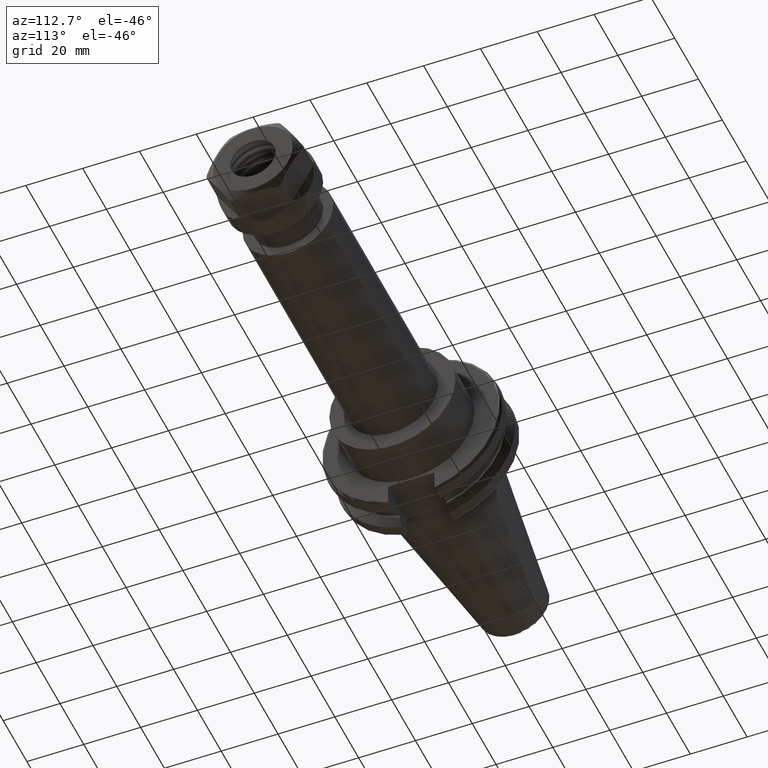
[diagram: clean part render]
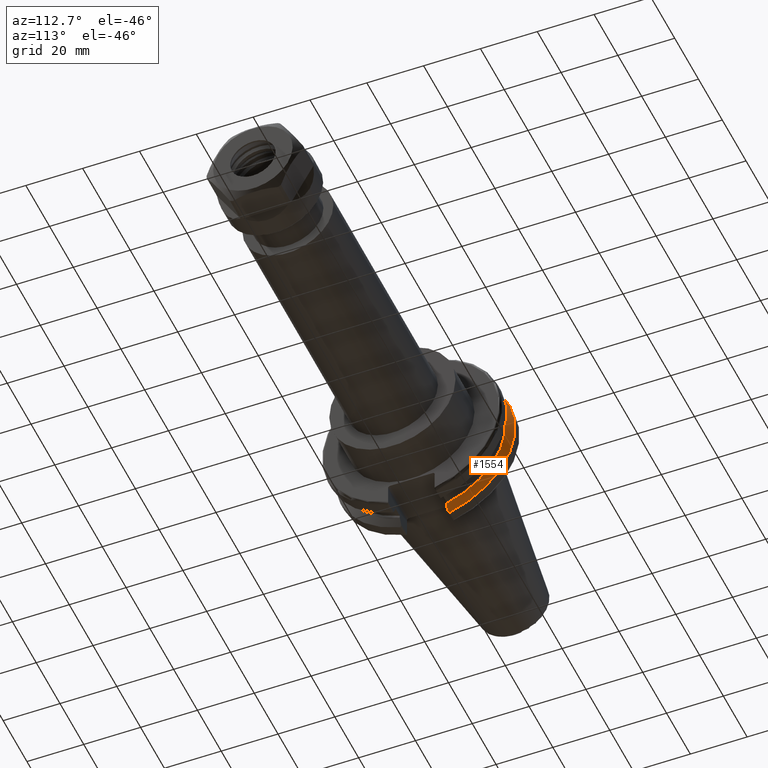
[diagram: same view with one face highlighted and labeled with its STEP entity id]
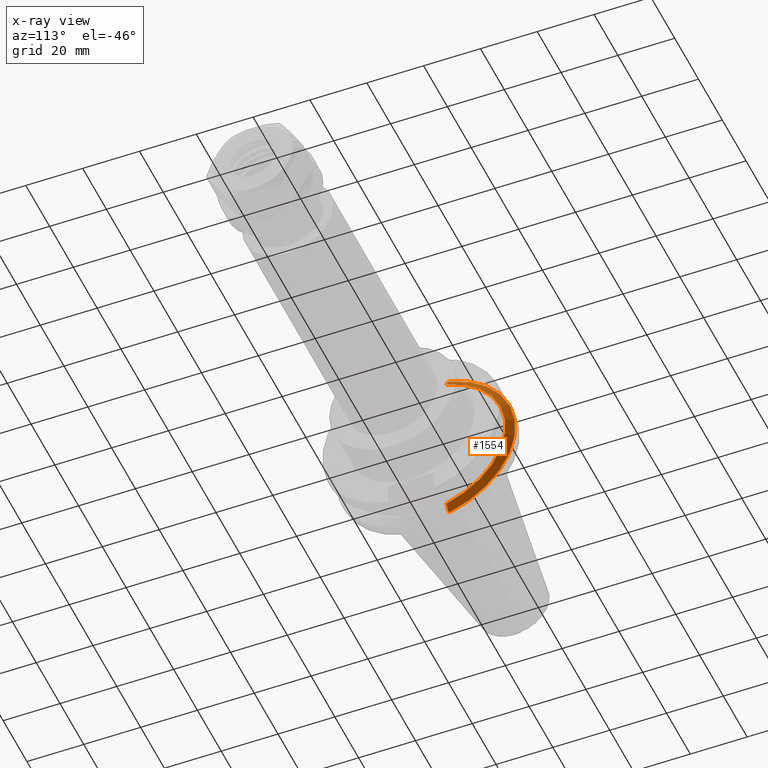
[diagram: x-ray of the same camera — body ghosted, the highlighted face saturated]
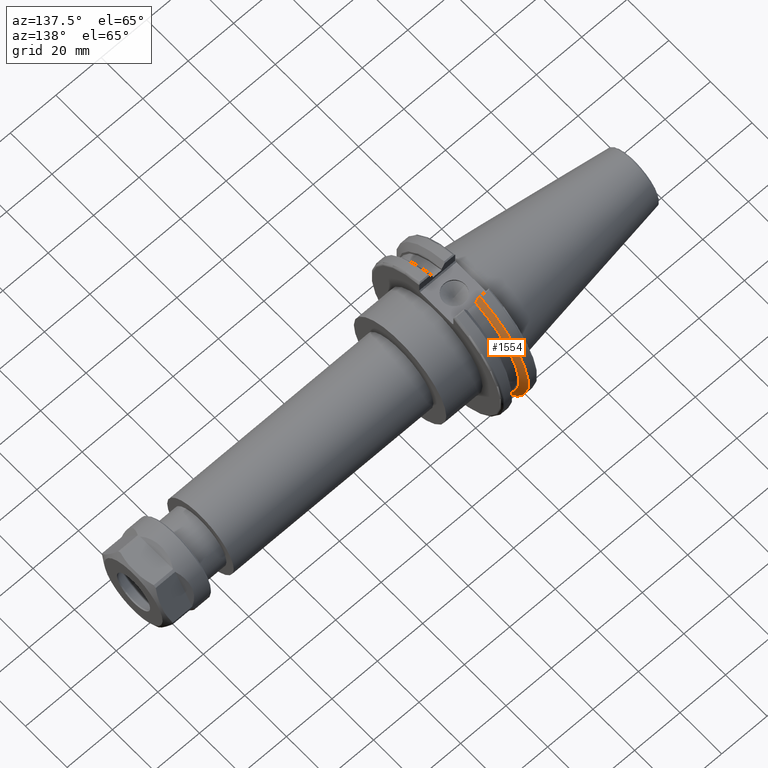
[diagram: same view with one face highlighted and labeled with its STEP entity id]
A machine part, auxiliary view. The second image highlights one B-rep face of the part: STEP entity #1554.
The next image is the same camera in x-ray: the body ghosted, the highlighted face saturated — about 3% of this face is hidden behind the body in this view.
A second angle (auxiliary view) of the same face is appended — the face is thin or edge-on in the first view.
In plain terms, the highlighted conical surface has half-angle 60 deg.
Its self-contained STEP definition (entity closure, byte-faithful):
#69=(
BOUNDED_CURVE()
B_SPLINE_CURVE(2,(#2464,#2465,#2466),.UNSPECIFIED.,.F.,.F.)
B_SPLINE_CURVE_WITH_KNOTS((3,3),(0.,0.276549142796606),.UNSPECIFIED.)
CURVE()
GEOMETRIC_REPRESENTATION_ITEM()
RATIONAL_B_SPLINE_CURVE((1.,1.00095203903674,1.00031614444931))
REPRESENTATION_ITEM('')
);
#77=(
BOUNDED_CURVE()
B_SPLINE_CURVE(2,(#2646,#2647,#2648),.UNSPECIFIED.,.F.,.F.)
B_SPLINE_CURVE_WITH_KNOTS((3,3),(0.,0.0639048713675806),.UNSPECIFIED.)
CURVE()
GEOMETRIC_REPRESENTATION_ITEM()
RATIONAL_B_SPLINE_CURVE((1.,1.00028444218287,1.00047644010581))
REPRESENTATION_ITEM('')
);
#79=(
BOUNDED_CURVE()
B_SPLINE_CURVE(2,(#2688,#2689,#2690),.UNSPECIFIED.,.F.,.F.)
B_SPLINE_CURVE_WITH_KNOTS((3,3),(0.0550586467389817,0.331607789535851),
 .UNSPECIFIED.)
CURVE()
GEOMETRIC_REPRESENTATION_ITEM()
RATIONAL_B_SPLINE_CURVE((1.00031614445175,1.00095203904407,1.))
REPRESENTATION_ITEM('')
);
#83=(
BOUNDED_CURVE()
B_SPLINE_CURVE(2,(#2721,#2722,#2723),.UNSPECIFIED.,.F.,.F.)
B_SPLINE_CURVE_WITH_KNOTS((3,3),(0.329353533631191,0.393258405001025),
 .UNSPECIFIED.)
CURVE()
GEOMETRIC_REPRESENTATION_ITEM()
RATIONAL_B_SPLINE_CURVE((1.00047644010569,1.00028444218281,1.))
REPRESENTATION_ITEM('')
);
#185=CONICAL_SURFACE('',#1762,30.3546886482472,1.0471975511966);
#241=FACE_OUTER_BOUND('',#340,.T.);
#340=EDGE_LOOP('',(#1287,#1288,#1289,#1290,#1291,#1292));
#629=CIRCLE('',#1750,31.75);
#634=CIRCLE('',#1763,28.9593772964944);
#711=VERTEX_POINT('',#2461);
#712=VERTEX_POINT('',#2463);
#750=VERTEX_POINT('',#2644);
#760=VERTEX_POINT('',#2685);
#761=VERTEX_POINT('',#2687);
#764=VERTEX_POINT('',#2703);
#872=EDGE_CURVE('',#712,#711,#69,.T.);
#923=EDGE_CURVE('',#750,#711,#77,.T.);
#941=EDGE_CURVE('',#761,#760,#79,.T.);
#948=EDGE_CURVE('',#750,#764,#629,.T.);
#954=EDGE_CURVE('',#761,#764,#83,.T.);
#959=EDGE_CURVE('',#712,#760,#634,.T.);
#1287=ORIENTED_EDGE('',*,*,#923,.F.);
#1288=ORIENTED_EDGE('',*,*,#948,.T.);
#1289=ORIENTED_EDGE('',*,*,#954,.F.);
#1290=ORIENTED_EDGE('',*,*,#941,.T.);
#1291=ORIENTED_EDGE('',*,*,#959,.F.);
#1292=ORIENTED_EDGE('',*,*,#872,.T.);
#1554=ADVANCED_FACE('',(#241),#185,.T.);
#1750=AXIS2_PLACEMENT_3D('',#2705,#2076,#2077);
#1762=AXIS2_PLACEMENT_3D('',#2733,#2103,#2104);
#1763=AXIS2_PLACEMENT_3D('',#2734,#2105,#2106);
#2076=DIRECTION('center_axis',(1.,0.,0.));
#2077=DIRECTION('ref_axis',(0.,0.,-1.));
#2103=DIRECTION('center_axis',(-1.,0.,0.));
#2104=DIRECTION('ref_axis',(0.,1.,0.));
#2105=DIRECTION('center_axis',(1.,0.,0.));
#2106=DIRECTION('ref_axis',(0.,0.,-1.));
#2461=CARTESIAN_POINT('',(7.87958530351256,8.19,-30.1755016258903));
#2463=CARTESIAN_POINT('',(9.212,8.19,-27.7771386827498));
#2464=CARTESIAN_POINT('Ctrl Pts',(9.212,8.19,-27.7771386827498));
#2465=CARTESIAN_POINT('Ctrl Pts',(8.57336356152746,8.19,-28.9303689539641));
#2466=CARTESIAN_POINT('Ctrl Pts',(7.87958530351256,8.19,-30.1755016258903));
#2644=CARTESIAN_POINT('',(7.60083323092435,8.67204822802685,-30.5427254764662));
#2646=CARTESIAN_POINT('Ctrl Pts',(7.60083323092435,8.67204822802686,-30.5427254764662));
#2647=CARTESIAN_POINT('Ctrl Pts',(7.74189148121628,8.42917748262644,-30.357706789263));
#2648=CARTESIAN_POINT('Ctrl Pts',(7.87958530351256,8.19,-30.1755016258903));
#2685=CARTESIAN_POINT('',(9.212,8.19,27.7771386827498));
#2687=CARTESIAN_POINT('',(7.87958530351255,8.19,30.1755016258903));
#2688=CARTESIAN_POINT('Ctrl Pts',(7.87958530351255,8.19,30.1755016258903));
#2689=CARTESIAN_POINT('Ctrl Pts',(8.57336356152574,8.19,28.9303689539672));
#2690=CARTESIAN_POINT('Ctrl Pts',(9.212,8.19,27.7771386827498));
#2703=CARTESIAN_POINT('',(7.60083323092435,8.67204822802685,30.5427254764662));
#2705=CARTESIAN_POINT('Origin',(7.60083323092435,0.,0.));
#2721=CARTESIAN_POINT('Ctrl Pts',(7.87958530351255,8.19,30.1755016258903));
#2722=CARTESIAN_POINT('Ctrl Pts',(7.74189148121158,8.42917748263468,30.3577067892692));
#2723=CARTESIAN_POINT('Ctrl Pts',(7.60083323092435,8.67204822802687,30.5427254764662));
#2733=CARTESIAN_POINT('Origin',(8.40641661546218,0.,0.));
#2734=CARTESIAN_POINT('Origin',(9.212,0.,0.));